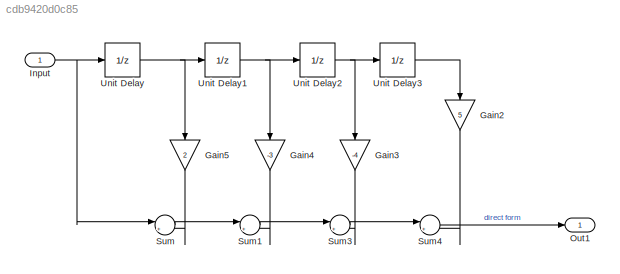
MODEL slx_cdb9420d0c85
KIND model
CONFIG AbsTol = auto
CONFIG EnableMultiTasking = off
CONFIG FixedStep = auto
CONFIG MaxStep = auto
CONFIG MinStep = auto
CONFIG RelTol = 1e-3
CONFIG SampleTimeConstraint = Unconstrained
CONFIG SolverName = VariableStepAuto
CONFIG StartTime = 0.0
CONFIG StopTime = 10.0
BLOCK [Gain] Gain2
  Gain = 5
  NameLocation = left
BLOCK [Gain] Gain3
  Gain = -4
  NameLocation = left
BLOCK [Gain] Gain4
  Gain = -3
  NameLocation = left
BLOCK [Gain] Gain5
  Gain = 2
  NameLocation = left
BLOCK [Inport] Input
  OutDataTypeStr = double
  PortDimensions = 1
  SampleTime = [0,1]
  SamplingMode = Sample based
  SignalType = real
BLOCK [Outport] Out1
  OutDataTypeStr = double
  PortDimensions = 1
  SampleTime = [0,1]
  SamplingMode = Sample based
  SignalType = real
BLOCK [Sum] Sum
  Inputs = |++
  Ports = [2, 1]
BLOCK [Sum] Sum1
  Inputs = |++
  Ports = [2, 1]
BLOCK [Sum] Sum3
  Inputs = |++
  Ports = [2, 1]
BLOCK [Sum] Sum4
  Inputs = |++
  Ports = [2, 1]
BLOCK [UnitDelay] Unit Delay
  HasFrameUpgradeWarning = on
  SampleTime = -1
BLOCK [UnitDelay] Unit Delay1
  HasFrameUpgradeWarning = on
  SampleTime = -1
BLOCK [UnitDelay] Unit Delay2
  HasFrameUpgradeWarning = on
  SampleTime = -1
BLOCK [UnitDelay] Unit Delay3
  HasFrameUpgradeWarning = on
  SampleTime = -1
LINE Gain2:1 -> Sum4:2
LINE Gain3:1 -> Sum3:2
LINE Gain4:1 -> Sum1:2
LINE Gain5:1 -> Sum:2
NET Input:1 -> Sum:1, Unit Delay:1
LINE Sum1:1 -> Sum3:1
LINE Sum3:1 -> Sum4:1
LINE Sum4:1 -> Out1:1
LINE Sum:1 -> Sum1:1
NET Unit Delay1:1 -> Gain4:1, Unit Delay2:1
NET Unit Delay2:1 -> Gain3:1, Unit Delay3:1
LINE Unit Delay3:1 -> Gain2:1
NET Unit Delay:1 -> Gain5:1, Unit Delay1:1
note: NET lines group one-source signal fan-out (src -> all destinations, sorted); 1:1 wires keep LINE
